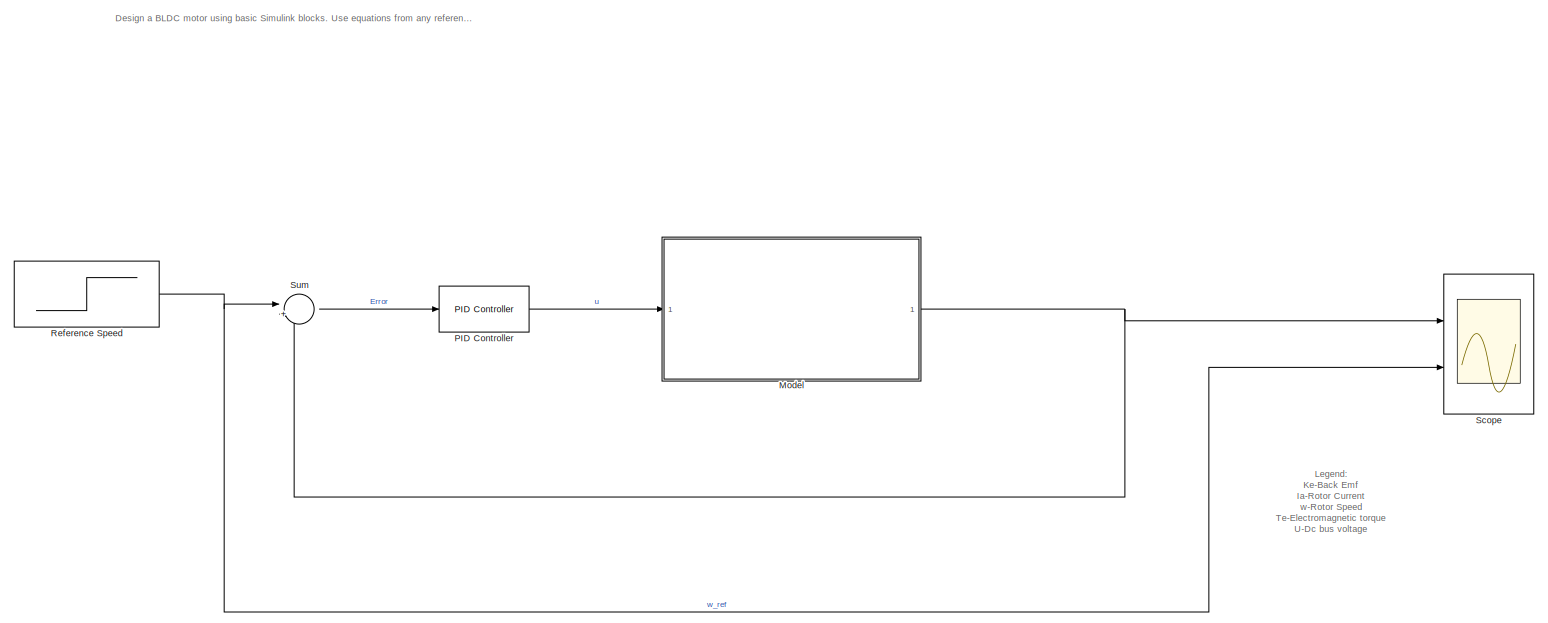
[diagram: root canvas - part 1/1, most of the canvas]
MODEL slx_794d7ca1ca34
KIND model
CONFIG AbsTol = auto
CONFIG EnableMultiTasking = off
CONFIG FixedStep = auto
CONFIG MaxStep = auto
CONFIG MinStep = auto
CONFIG RelTol = 1e-3
CONFIG SampleTimeConstraint = Unconstrained
CONFIG Solver = VariableStepAuto
CONFIG SolverName = VariableStepAuto
CONFIG StartTime = 0.0
CONFIG StopTime = 3
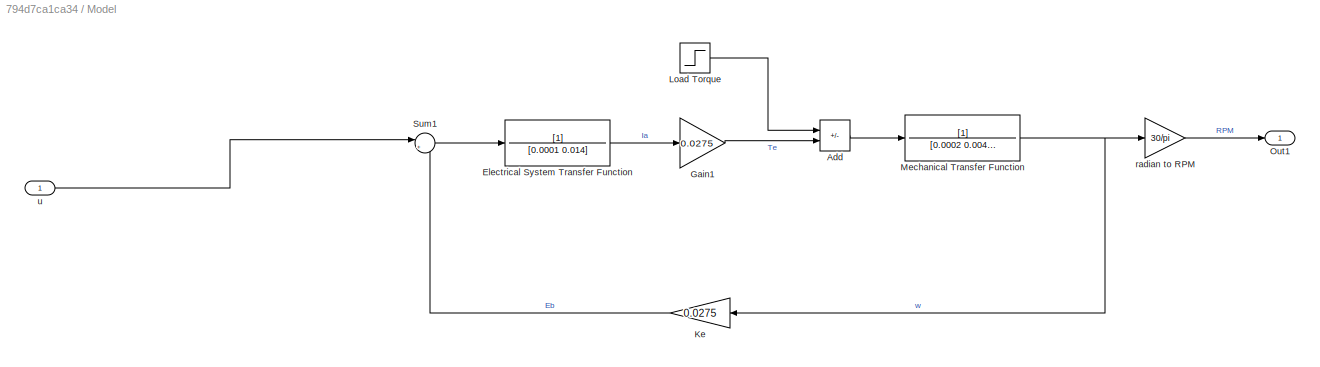
BLOCK [SubSystem] Model
  Ports = [1, 1]
  RequestExecContextInheritance = off
BLOCK [Sum] Model/Add
  IconShape = rectangular
  Inputs = -+
  Ports = [2, 1]
BLOCK [TransferFcn] Model/Electrical System Transfer Function
  Denominator = [0.0001 0.014]
BLOCK [Gain] Model/Gain1
  Gain = 0.0275
BLOCK [Gain] Model/Ke
  Gain = 0.0275
  NameLocation = top
BLOCK [Step] Model/Load Torque
  After = 10
  SampleTime = 0
BLOCK [TransferFcn] Model/Mechanical Transfer Function
  Denominator = [0.0002 0.004586]
BLOCK [Outport] Model/Out1
BLOCK [Sum] Model/Sum1
  Inputs = |+-
  Ports = [2, 1]
BLOCK [Gain] Model/radian to RPM
  Gain = 30/pi
  NameLocation = top
BLOCK [Inport] Model/u
BLOCK [Reference] PID Controller  REF=simulink/Continuous/PID Controller
  Ports = [1, 1]
  SourceBlock = simulink/Continuous/PID Controller
  SourceProductBaseCode = SL
  SourceType = PID 1dof
BLOCK [Step] Reference Speed
  After = 1500
  SampleTime = 0
BLOCK [Scope] Scope
  Floating = off
  NameLocation = top
  NumInputPorts = 2
  Ports = [2]
  ScopeSpecificationString = Simulink.scopes.TimeScopeBlockCfg('CurrentConfiguration', extmgr.ConfigurationSet(extmgr.Configuration('Core','General UI',true),extmgr.Configuration('Core','Source UI',true),extmgr.Configuration('Sources','WiredSimulink',true),extmgr.Configuration('Visuals','Time Domain',true,'SerializedDisplays',{struct('MinYLimReal','-209.57507','MaxYLimReal','1886.17566','YLabelReal','','MinYLimMag',' 0.00000'...<+1480ch>
BLOCK [Sum] Sum
  Inputs = |+-
  Ports = [2, 1]
ANNOTATION (root): Design a BLDC motor using basic Simulink blocks. Use equations from any reference book or from the internet. Cite the source for the equation. Demonstrate a speed control system with this motor.
ANNOTATION (root): Legend: Ke-Back Emf Ia-Rotor Current w-Rotor Speed Te-Electromagnetic torque U-Dc bus voltage
LINE Model/Add:1 -> Model/Mechanical Transfer Function:1
LINE Model/Electrical System Transfer Function:1 -> Model/Gain1:1
LINE Model/Gain1:1 -> Model/Add:2
LINE Model/Ke:1 -> Model/Sum1:2
LINE Model/Load Torque:1 -> Model/Add:1
NET Model/Mechanical Transfer Function:1 -> Model/Ke:1, Model/radian to RPM:1
LINE Model/Sum1:1 -> Model/Electrical System Transfer Function:1
LINE Model/radian to RPM:1 -> Model/Out1:1
LINE Model/u:1 -> Model/Sum1:1
NET Model:1 -> Scope:1, Sum:2
LINE PID Controller:1 -> Model:1
NET Reference Speed:1 -> Scope:2, Sum:1
LINE Sum:1 -> PID Controller:1
note: NET lines group one-source signal fan-out (src -> all destinations, sorted); 1:1 wires keep LINE
